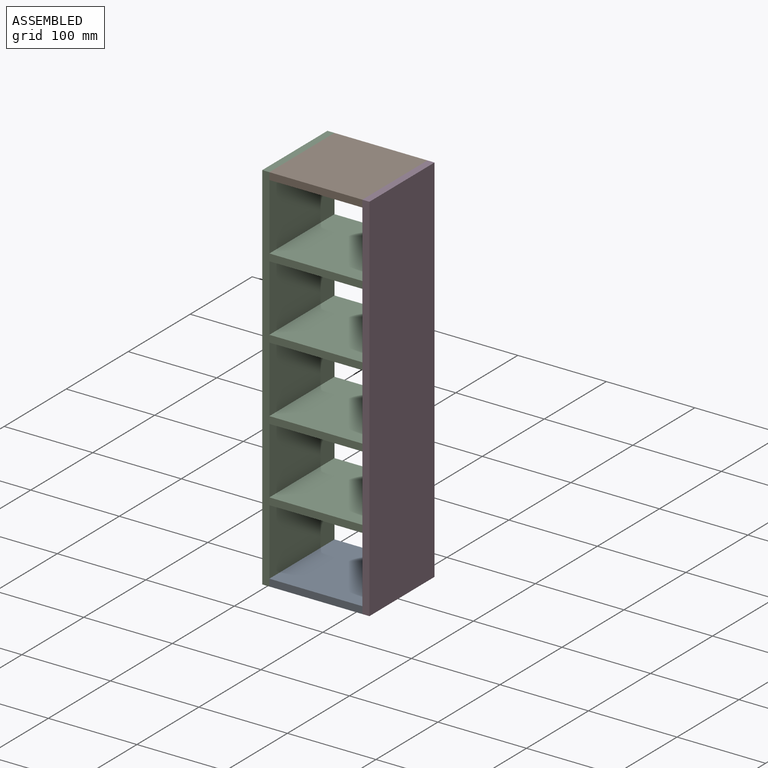
[diagram: assembled view]
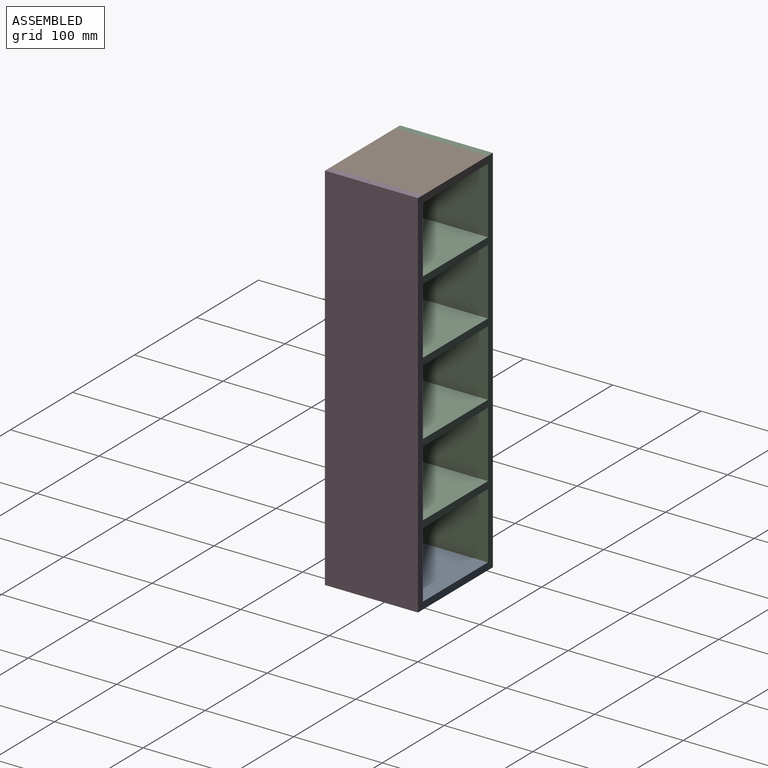
[diagram: assembled view, second angle]
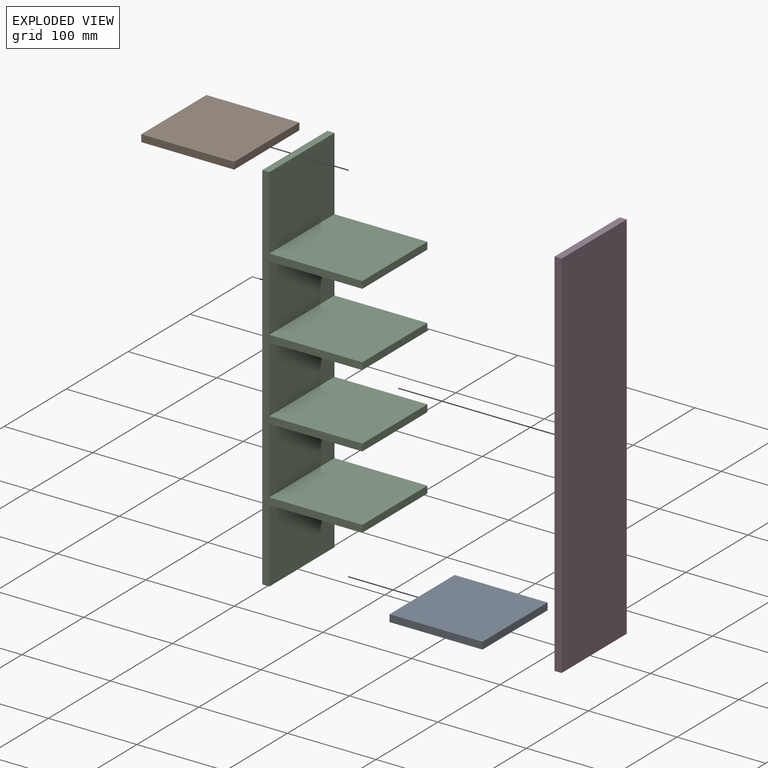
[diagram: exploded view]
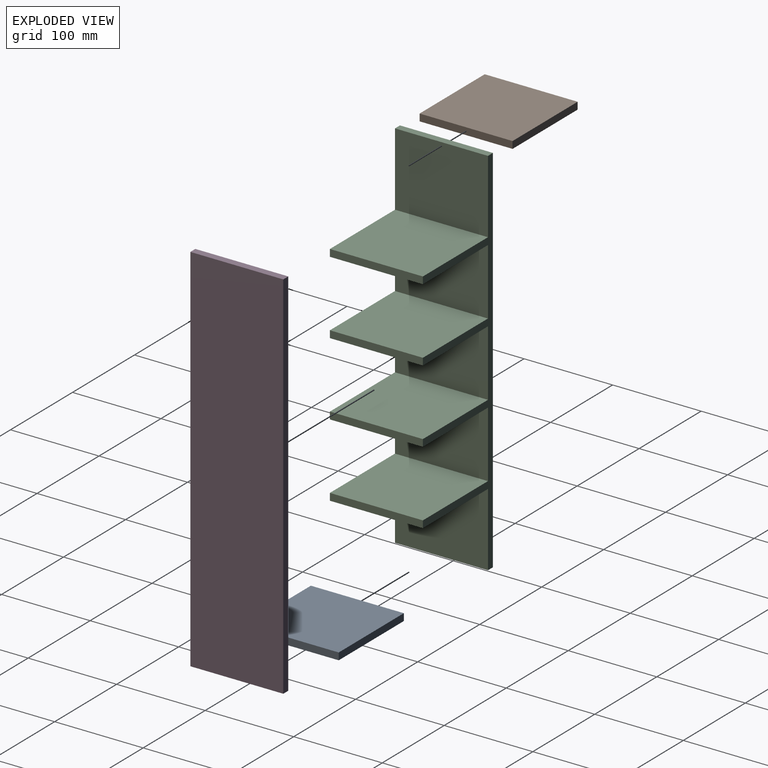
[diagram: exploded view, second angle]
ASSEMBLY  parts=4 mates=3
PART A: 6 faces, bbox 105x105x8 mm
  f0: plane 105x8mm, normal (-1,0,0), area 840mm2, adj f1,f3,f4,f5
  f1: plane 105x8mm, normal (0,-1,0), area 840mm2, adj f0,f2,f4,f5
  f2: plane 105x8mm, normal (1,0,0), area 840mm2, adj f1,f3,f4,f5
  f3: plane 105x8mm, normal (0,1,0), area 840mm2, adj f0,f2,f4,f5
  f4: plane 105x105mm, normal (0,0,1), area 11025mm2, adj f0,f1,f2,f3
  f5: plane 105x105mm, normal (0,0,-1), area 11025mm2, adj f0,f1,f2,f3
PART B: same geometry as A
PART C: 22 faces, bbox 113x105x423 mm
  f0: plane 105x75mm, normal (1,0,0), area 7875mm2, adj f4,f6,f18,f19
  f1: plane 105x75mm, normal (1,0,0), area 7875mm2, adj f4,f6,f15,f16
  f2: plane 105x75mm, normal (1,0,0), area 7875mm2, adj f4,f6,f12,f13
  f3: plane 105x83mm, normal (1,0,0), area 8715mm2, adj f4,f5,f6,f10
  f4: plane 423x113mm, normal (0,-1,0), area 6744mm2, adj f0,f1,f2,f3,f5,f7,f8,f9
  f5: plane 105x8mm, normal (0,0,-1), area 840mm2, adj f3,f4,f6,f9
  f6: plane 423x113mm, normal (0,1,0), area 6744mm2, adj f0,f1,f2,f3,f5,f7,f8,f9
  f7: plane 105x8mm, normal (0,0,1), area 840mm2, adj f4,f6,f8,f9
  f8: plane 105x83mm, normal (1,0,0), area 8715mm2, adj f4,f6,f7,f21
  f9: plane 423x105mm, normal (-1,0,0), area 44415mm2, adj f4,f5,f6,f7
  f10: plane 105x105mm, normal (0,0,-1), area 11025mm2, adj f3,f4,f6,f11
  f11: plane 105x8mm, normal (1,0,0), area 840mm2, adj f4,f6,f10,f12
  f12: plane 105x105mm, normal (0,0,1), area 11025mm2, adj f2,f4,f6,f11
  f13: plane 105x105mm, normal (0,0,-1), area 11025mm2, adj f2,f4,f6,f14
  f14: plane 105x8mm, normal (1,0,0), area 840mm2, adj f4,f6,f13,f15
  f15: plane 105x105mm, normal (0,0,1), area 11025mm2, adj f1,f4,f6,f14
  f16: plane 105x105mm, normal (0,0,-1), area 11025mm2, adj f1,f4,f6,f17
  f17: plane 105x8mm, normal (1,0,0), area 840mm2, adj f4,f6,f16,f18
  f18: plane 105x105mm, normal (0,0,1), area 11025mm2, adj f0,f4,f6,f17
  f19: plane 105x105mm, normal (0,0,-1), area 11025mm2, adj f0,f4,f6,f20
  f20: plane 105x8mm, normal (1,0,0), area 840mm2, adj f4,f6,f19,f21
  f21: plane 105x105mm, normal (0,0,1), area 11025mm2, adj f4,f6,f8,f20
PART D: 6 faces, bbox 8x105x423 mm
  f0: plane 423x8mm, normal (0,-1,0), area 3384mm2, adj f1,f3,f4,f5
  f1: plane 105x8mm, normal (0,0,-1), area 840mm2, adj f0,f2,f4,f5
  f2: plane 423x8mm, normal (0,1,0), area 3384mm2, adj f1,f3,f4,f5
  f3: plane 105x8mm, normal (0,0,1), area 840mm2, adj f0,f2,f4,f5
  f4: plane 423x105mm, normal (1,0,0), area 44415mm2, adj f0,f1,f2,f3
  f5: plane 423x105mm, normal (-1,0,0), area 44415mm2, adj f0,f1,f2,f3
PLACE A t=(-37.07,194.15,-281.66)mm
PLACE B t=(-37.07,194.15,133.34)mm
PLACE C t=(-97.57,194.15,-70.16)mm
PLACE D t=(15.43,194.15,-70.16)mm
MATE fastened B.f0 <-> C.f8  axis (-1,0,0) through (-89.57,246.65,141.34)mm
MATE fastened D.f5 <-> B.f2  axis (-1,0,0) through (15.43,246.65,141.34)mm
MATE fastened C.f3 <-> A.f0  axis (1,0,0) through (-89.57,141.65,-281.66)mm
